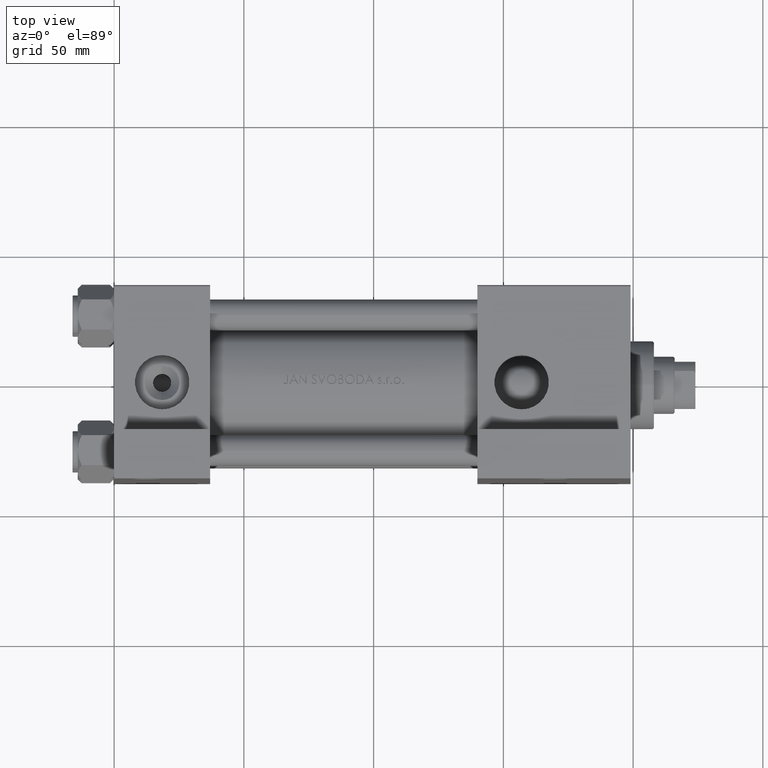
[diagram: clean part render]
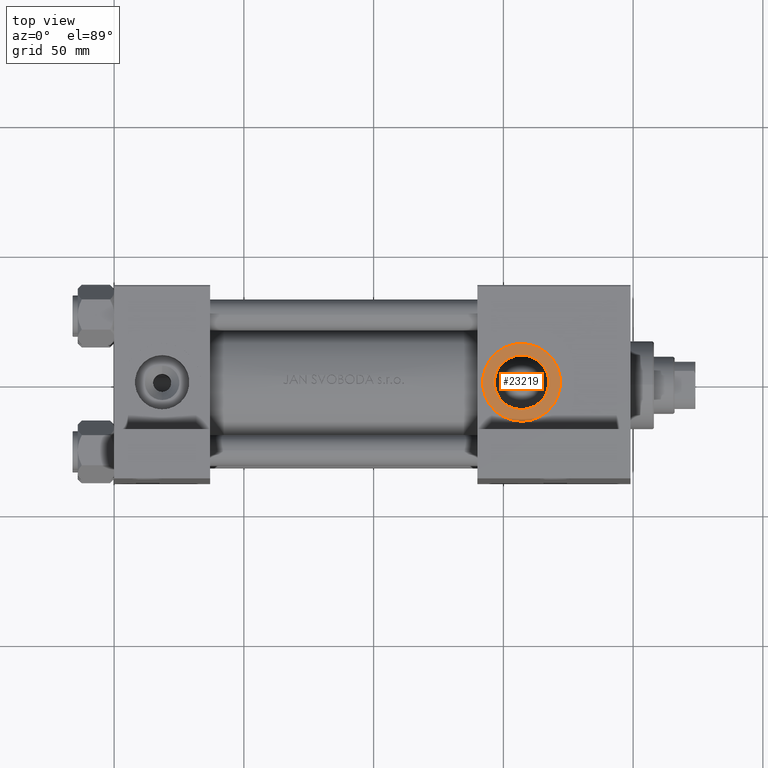
[diagram: same view with one face highlighted and labeled with its STEP entity id]
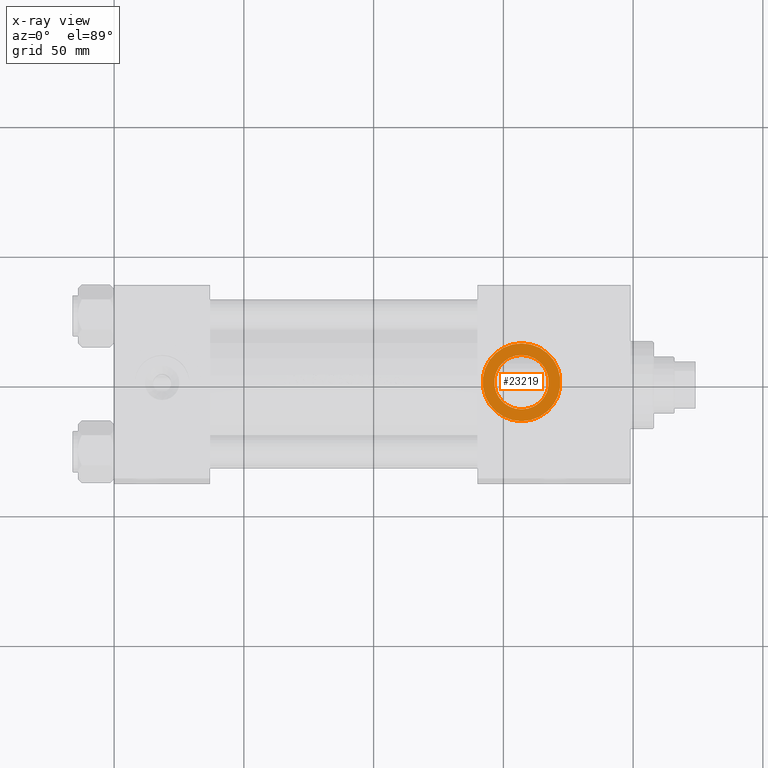
[diagram: x-ray of the same camera — body ghosted, the highlighted face saturated]
A machine part, top view. The second image highlights one B-rep face of the part: STEP entity #23219.
The next image is the same camera in x-ray: the body ghosted, the highlighted face saturated — about 0% of this face is hidden behind the body in this view.
In plain terms, the highlighted planar face has unit normal (0, -0, 1).
Its self-contained STEP definition (entity closure, byte-faithful):
#330 = EDGE_CURVE ( 'NONE', #34781, #7377, #37251, .T. ) ;
#1790 = EDGE_LOOP ( 'NONE', ( #4094, #27814 ) ) ;
#2427 = AXIS2_PLACEMENT_3D ( 'NONE', #25120, #41043, #34039 ) ;
#2677 = DIRECTION ( 'NONE',  ( 0.000000000000000000, 8.673617379884036705E-17, -1.000000000000000000 ) ) ;
#4094 = ORIENTED_EDGE ( 'NONE', *, *, #10678, .F. ) ;
#4791 = AXIS2_PLACEMENT_3D ( 'NONE', #44699, #37452, #22053 ) ;
#6245 = CARTESIAN_POINT ( 'NONE',  ( 156.9999999999999716, -37.29999999999999716, 10.47999999999998977 ) ) ;
#6980 = EDGE_CURVE ( 'NONE', #7377, #34781, #42944, .T. ) ;
#7186 = DIRECTION ( 'NONE',  ( 0.000000000000000000, -1.000000000000000000, -8.673617379884036705E-17 ) ) ;
#7377 = VERTEX_POINT ( 'NONE', #27369 ) ;
#8798 = CIRCLE ( 'NONE', #2427, 10.47999999999998622 ) ;
#10678 = EDGE_CURVE ( 'NONE', #13090, #21536, #21601, .T. ) ;
#10894 = CARTESIAN_POINT ( 'NONE',  ( 156.9999999999999716, -37.29999999999999716, 3.486794186713383443E-15 ) ) ;
#11122 = DIRECTION ( 'NONE',  ( 0.000000000000000000, -1.000000000000000000, -8.673617379884036705E-17 ) ) ;
#12633 = AXIS2_PLACEMENT_3D ( 'NONE', #10894, #26068, #41260 ) ;
#13090 = VERTEX_POINT ( 'NONE', #27649 ) ;
#14457 = AXIS2_PLACEMENT_3D ( 'NONE', #45512, #7186, #19382 ) ;
#16051 = CARTESIAN_POINT ( 'NONE',  ( 156.9999999999999716, -37.29999999999999716, 15.00000000000002842 ) ) ;
#17764 = EDGE_LOOP ( 'NONE', ( #35482, #22443 ) ) ;
#19382 = DIRECTION ( 'NONE',  ( 0.000000000000000000, 0.000000000000000000, -1.000000000000000000 ) ) ;
#21536 = VERTEX_POINT ( 'NONE', #6245 ) ;
#21601 = CIRCLE ( 'NONE', #14457, 10.47999999999998622 ) ;
#21607 = FACE_OUTER_BOUND ( 'NONE', #17764, .T. ) ;
#21854 = CARTESIAN_POINT ( 'NONE',  ( 156.9999999999999716, -37.29999999999999716, 3.486794186713383443E-15 ) ) ;
#22053 = DIRECTION ( 'NONE',  ( 0.000000000000000000, 0.000000000000000000, -1.000000000000000000 ) ) ;
#22443 = ORIENTED_EDGE ( 'NONE', *, *, #330, .T. ) ;
#23219 = ADVANCED_FACE ( 'NONE', ( #25324, #21607 ), #36764, .T. ) ;
#25120 = CARTESIAN_POINT ( 'NONE',  ( 156.9999999999999716, -37.29999999999999716, 3.486794186713383443E-15 ) ) ;
#25324 = FACE_BOUND ( 'NONE', #1790, .T. ) ;
#26068 = DIRECTION ( 'NONE',  ( 0.000000000000000000, -1.000000000000000000, -8.673617379884036705E-17 ) ) ;
#27369 = CARTESIAN_POINT ( 'NONE',  ( 156.9999999999999716, -37.29999999999999716, -15.00000000000002132 ) ) ;
#27649 = CARTESIAN_POINT ( 'NONE',  ( 156.9999999999999716, -37.29999999999999716, -10.47999999999998266 ) ) ;
#27814 = ORIENTED_EDGE ( 'NONE', *, *, #38264, .F. ) ;
#34039 = DIRECTION ( 'NONE',  ( 0.000000000000000000, 0.000000000000000000, -1.000000000000000000 ) ) ;
#34781 = VERTEX_POINT ( 'NONE', #16051 ) ;
#35482 = ORIENTED_EDGE ( 'NONE', *, *, #6980, .T. ) ;
#36764 = PLANE ( 'NONE',  #48152 ) ;
#37251 = CIRCLE ( 'NONE', #12633, 15.00000000000002487 ) ;
#37452 = DIRECTION ( 'NONE',  ( 0.000000000000000000, -1.000000000000000000, -8.673617379884036705E-17 ) ) ;
#38264 = EDGE_CURVE ( 'NONE', #21536, #13090, #8798, .T. ) ;
#41043 = DIRECTION ( 'NONE',  ( 0.000000000000000000, -1.000000000000000000, -8.673617379884036705E-17 ) ) ;
#41260 = DIRECTION ( 'NONE',  ( 0.000000000000000000, 0.000000000000000000, -1.000000000000000000 ) ) ;
#42944 = CIRCLE ( 'NONE', #4791, 15.00000000000002487 ) ;
#44699 = CARTESIAN_POINT ( 'NONE',  ( 156.9999999999999716, -37.29999999999999716, 3.486794186713383443E-15 ) ) ;
#45512 = CARTESIAN_POINT ( 'NONE',  ( 156.9999999999999716, -37.29999999999999716, 3.486794186713383443E-15 ) ) ;
#48152 = AXIS2_PLACEMENT_3D ( 'NONE', #21854, #11122, #2677 ) ;